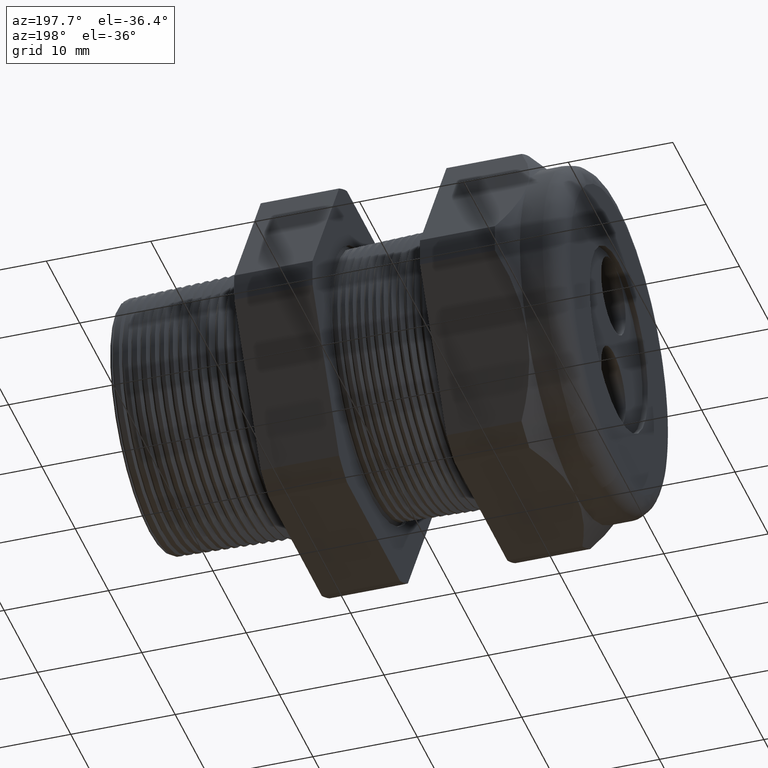
[diagram: clean part render]
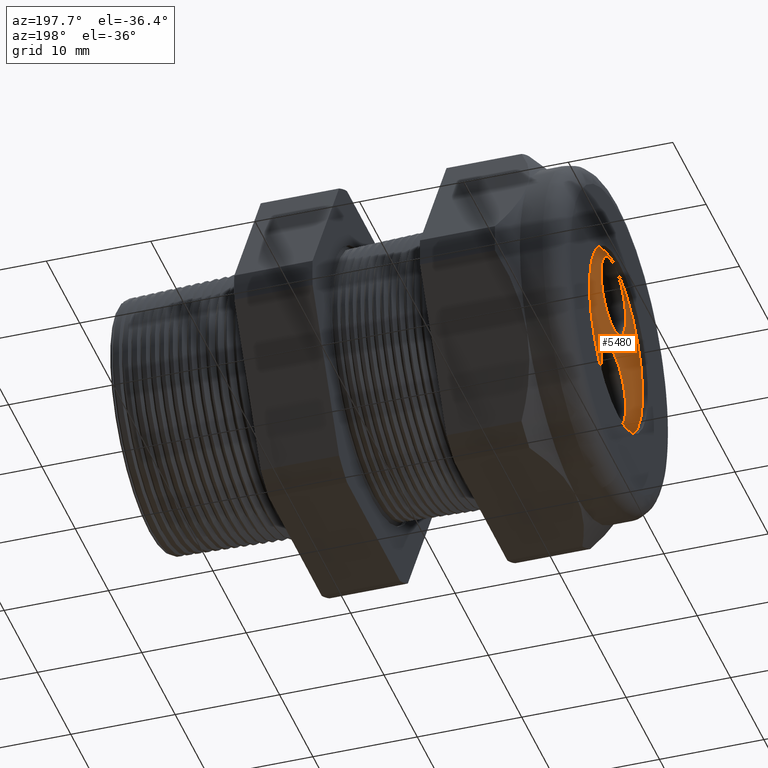
[diagram: same view with one face highlighted and labeled with its STEP entity id]
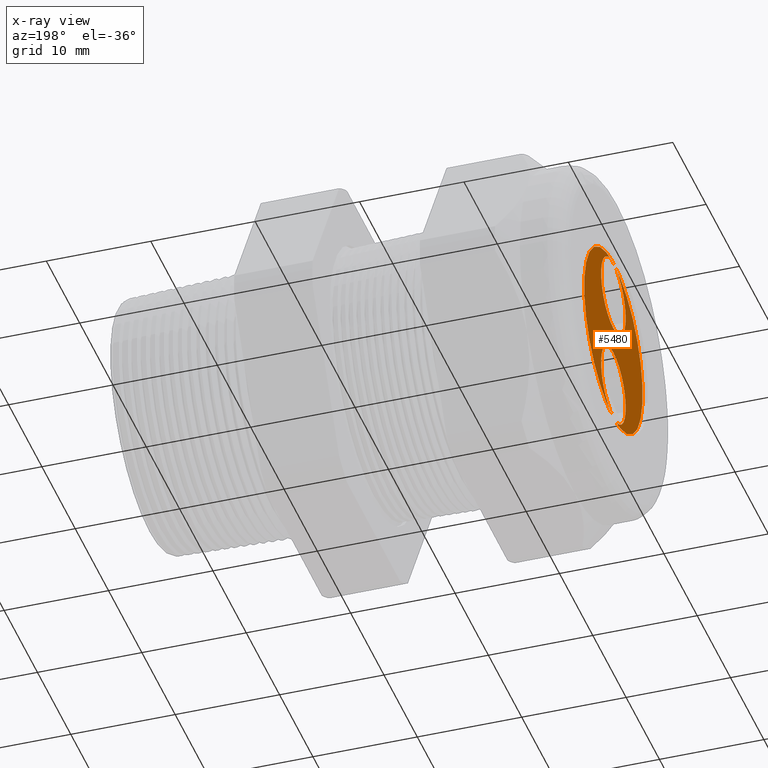
[diagram: x-ray of the same camera — body ghosted, the highlighted face saturated]
A machine part, auxiliary view. The second image highlights one B-rep face of the part: STEP entity #5480.
The next image is the same camera in x-ray: the body ghosted, the highlighted face saturated — about 0% of this face is hidden behind the body in this view.
In plain terms, the highlighted planar face has unit normal (-1, 0, 0).
Its self-contained STEP definition (entity closure, byte-faithful):
#3125 = CARTESIAN_POINT ( 'NONE',  ( -1.509999999999999800, 0.0000000000000000000, 0.0000000000000000000 ) ) ;
#3126 = PLANE ( 'NONE',  #3188 ) ;
#3127 = FACE_OUTER_BOUND ( 'NONE', #5408, .T. ) ;
#3128 = FACE_BOUND ( 'NONE', #5468, .T. ) ;
#3129 = FACE_BOUND ( 'NONE', #5409, .T. ) ;
#3146 = DIRECTION ( 'NONE',  ( 0.0000000000000000000, -6.982966722218764100E-015, -1.000000000000000000 ) ) ;
#3147 = DIRECTION ( 'NONE',  ( -1.000000000000000000, 0.0000000000000000000, 0.0000000000000000000 ) ) ;
#3148 = CARTESIAN_POINT ( 'NONE',  ( -1.509999999999999800, 1.392543223744865700E-015, 0.1994199999999999600 ) ) ;
#3149 = AXIS2_PLACEMENT_3D ( 'NONE', #3148, #3147, #3146 ) ;
#3150 = CIRCLE ( 'NONE', #3149, 0.1449999999999999900 ) ;
#3151 = DIRECTION ( 'NONE',  ( 0.0000000000000000000, 0.0000000000000000000, 1.000000000000000000 ) ) ;
#3152 = DIRECTION ( 'NONE',  ( -1.000000000000000000, 0.0000000000000000000, 0.0000000000000000000 ) ) ;
#3153 = CARTESIAN_POINT ( 'NONE',  ( -1.509999999999999800, 0.0000000000000000000, -0.1994199999999999600 ) ) ;
#3154 = AXIS2_PLACEMENT_3D ( 'NONE', #3153, #3152, #3151 ) ;
#3155 = CIRCLE ( 'NONE', #3154, 0.1449999999999999900 ) ;
#3157 = CARTESIAN_POINT ( 'NONE',  ( -1.509999999999999800, 0.0000000000000000000, -0.05441999999999996100 ) ) ;
#3158 = DIRECTION ( 'NONE',  ( 0.0000000000000000000, 0.0000000000000000000, 1.000000000000000000 ) ) ;
#3159 = DIRECTION ( 'NONE',  ( -1.000000000000000000, 0.0000000000000000000, 0.0000000000000000000 ) ) ;
#3160 = CARTESIAN_POINT ( 'NONE',  ( -1.509999999999999800, 0.0000000000000000000, -0.1994199999999999600 ) ) ;
#3161 = AXIS2_PLACEMENT_3D ( 'NONE', #3160, #3159, #3158 ) ;
#3162 = CIRCLE ( 'NONE', #3161, 0.1449999999999999900 ) ;
#3163 = CARTESIAN_POINT ( 'NONE',  ( -1.509999999999999800, 1.775737858763661900E-017, -0.3444199999999999500 ) ) ;
#3181 = DIRECTION ( 'NONE',  ( 0.0000000000000000000, 0.0000000000000000000, 1.000000000000000000 ) ) ;
#3182 = DIRECTION ( 'NONE',  ( -1.000000000000000000, 0.0000000000000000000, 0.0000000000000000000 ) ) ;
#3183 = CARTESIAN_POINT ( 'NONE',  ( -1.509999999999999800, 0.0000000000000000000, 0.0000000000000000000 ) ) ;
#3184 = AXIS2_PLACEMENT_3D ( 'NONE', #3183, #3182, #3181 ) ;
#3185 = CIRCLE ( 'NONE', #3184, 0.3449999999999999200 ) ;
#3186 = DIRECTION ( 'NONE',  ( 0.0000000000000000000, 0.0000000000000000000, 1.000000000000000000 ) ) ;
#3187 = DIRECTION ( 'NONE',  ( -1.000000000000000000, 0.0000000000000000000, 0.0000000000000000000 ) ) ;
#3188 = AXIS2_PLACEMENT_3D ( 'NONE', #3125, #3187, #3186 ) ;
#3284 = CIRCLE ( 'NONE', #3344, 0.1449999999999999900 ) ;
#3341 = DIRECTION ( 'NONE',  ( 0.0000000000000000000, -6.982966722218764100E-015, -1.000000000000000000 ) ) ;
#3342 = DIRECTION ( 'NONE',  ( -1.000000000000000000, 0.0000000000000000000, 0.0000000000000000000 ) ) ;
#3343 = CARTESIAN_POINT ( 'NONE',  ( -1.509999999999999800, 1.392543223744865700E-015, 0.1994199999999999600 ) ) ;
#3344 = AXIS2_PLACEMENT_3D ( 'NONE', #3343, #3342, #3341 ) ;
#3352 = CARTESIAN_POINT ( 'NONE',  ( -1.509999999999999800, 0.0000000000000000000, 0.3449999999999999200 ) ) ;
#3353 = CARTESIAN_POINT ( 'NONE',  ( -1.509999999999999800, 4.225031457058367800E-017, -0.3449999999999999200 ) ) ;
#3354 = DIRECTION ( 'NONE',  ( 0.0000000000000000000, 0.0000000000000000000, 1.000000000000000000 ) ) ;
#3355 = DIRECTION ( 'NONE',  ( -1.000000000000000000, 0.0000000000000000000, 0.0000000000000000000 ) ) ;
#3356 = AXIS2_PLACEMENT_3D ( 'NONE', #3362, #3355, #3354 ) ;
#3357 = CIRCLE ( 'NONE', #3356, 0.3449999999999999200 ) ;
#3362 = CARTESIAN_POINT ( 'NONE',  ( -1.509999999999999800, 0.0000000000000000000, 0.0000000000000000000 ) ) ;
#3400 = CARTESIAN_POINT ( 'NONE',  ( -1.509999999999999800, 1.392543223744865700E-015, 0.3444199999999999500 ) ) ;
#3401 = CARTESIAN_POINT ( 'NONE',  ( -1.509999999999999800, 1.410300602332502300E-015, 0.05441999999999996100 ) ) ;
#5408 = EDGE_LOOP ( 'NONE', ( #5459, #5460 ) ) ;
#5409 = EDGE_LOOP ( 'NONE', ( #5477, #5467 ) ) ;
#5459 = ORIENTED_EDGE ( 'NONE', *, *, #5483, .T. ) ;
#5460 = ORIENTED_EDGE ( 'NONE', *, *, #5588, .T. ) ;
#5467 = ORIENTED_EDGE ( 'NONE', *, *, #5562, .F. ) ;
#5468 = EDGE_LOOP ( 'NONE', ( #5470, #5475 ) ) ;
#5469 = EDGE_CURVE ( 'NONE', #5495, #5492, #3155, .T. ) ;
#5470 = ORIENTED_EDGE ( 'NONE', *, *, #5469, .F. ) ;
#5471 = EDGE_CURVE ( 'NONE', #5602, #5600, #3150, .T. ) ;
#5475 = ORIENTED_EDGE ( 'NONE', *, *, #5494, .F. ) ;
#5477 = ORIENTED_EDGE ( 'NONE', *, *, #5471, .F. ) ;
#5480 = ADVANCED_FACE ( 'NONE', ( #3129, #3128, #3127 ), #3126, .T. ) ;
#5483 = EDGE_CURVE ( 'NONE', #5590, #5589, #3185, .T. ) ;
#5492 = VERTEX_POINT ( 'NONE', #3163 ) ;
#5494 = EDGE_CURVE ( 'NONE', #5492, #5495, #3162, .T. ) ;
#5495 = VERTEX_POINT ( 'NONE', #3157 ) ;
#5562 = EDGE_CURVE ( 'NONE', #5600, #5602, #3284, .T. ) ;
#5588 = EDGE_CURVE ( 'NONE', #5589, #5590, #3357, .T. ) ;
#5589 = VERTEX_POINT ( 'NONE', #3353 ) ;
#5590 = VERTEX_POINT ( 'NONE', #3352 ) ;
#5600 = VERTEX_POINT ( 'NONE', #3401 ) ;
#5602 = VERTEX_POINT ( 'NONE', #3400 ) ;